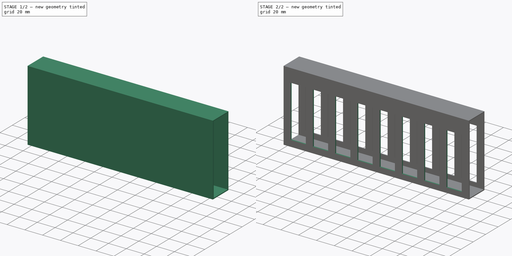
[diagram: build sequence overview — one tinted view per stage of 2, left to right]
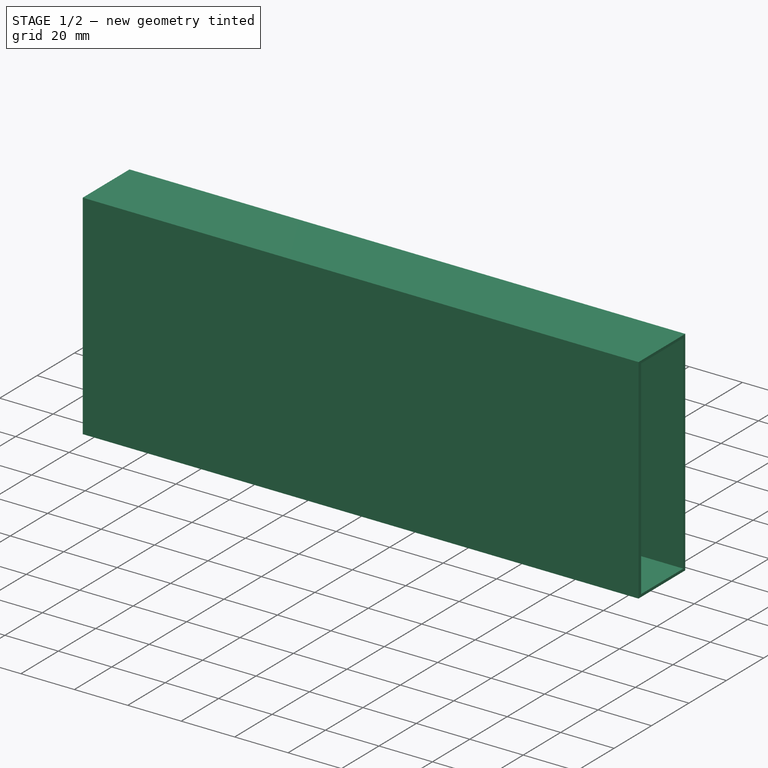
[diagram: stage 1 of 2 — iso view after this stage's code; geometry added in this stage tinted green]
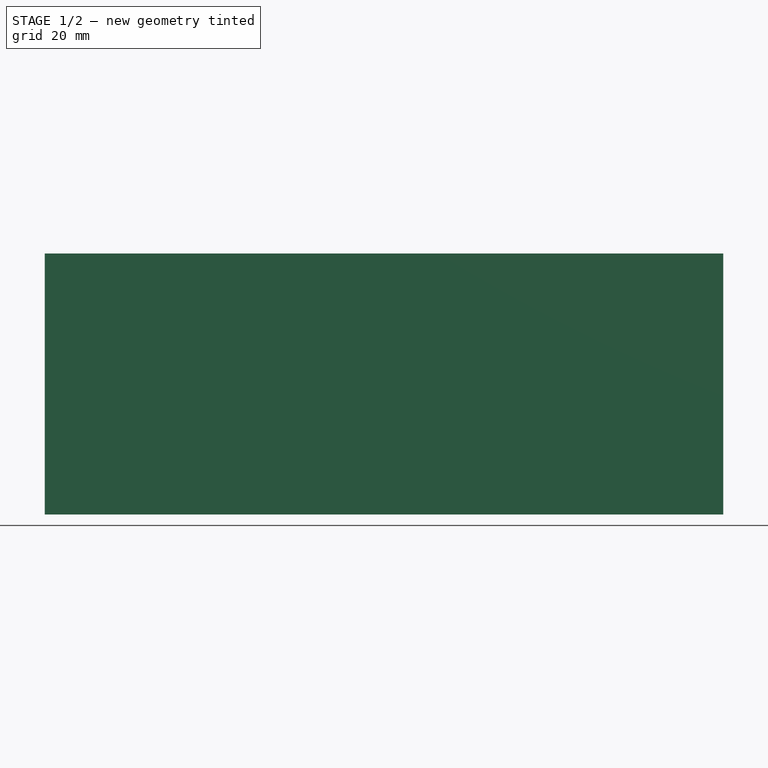
[diagram: stage 1 of 2 — front view after this stage's code; geometry added in this stage tinted green]
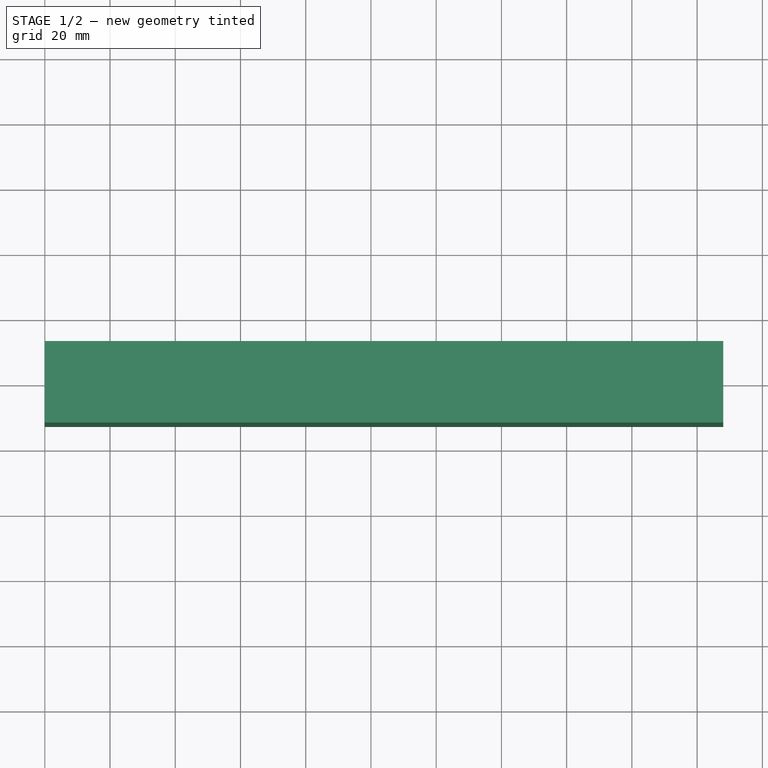
[diagram: stage 1 of 2 — top view after this stage's code; geometry added in this stage tinted green]
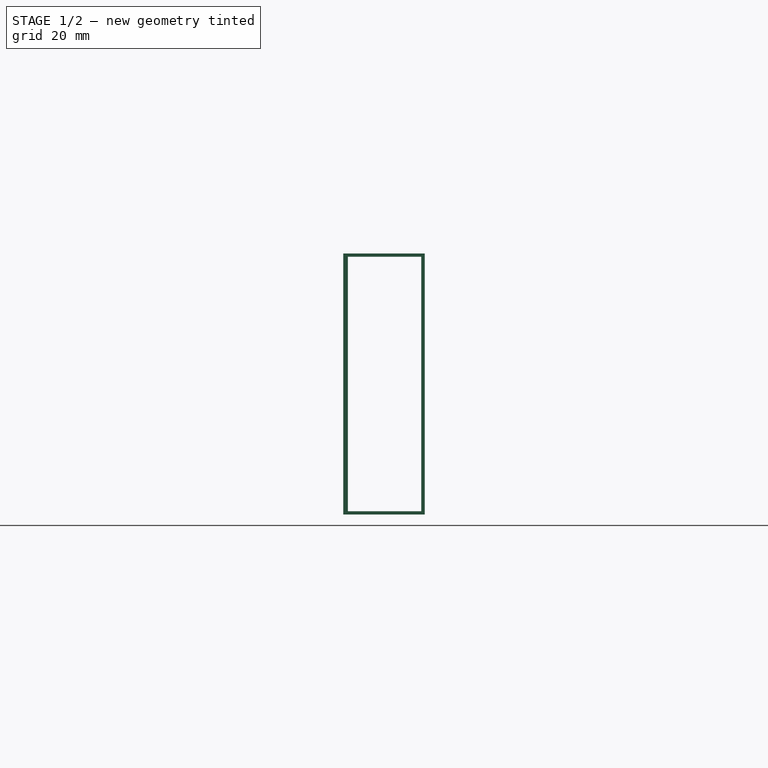
[diagram: stage 1 of 2 — right view after this stage's code; geometry added in this stage tinted green]
FCSTD DOCUMENT  (FreeCAD 0.19R24267 +99 (Git))
Label: ID_28_W20_ダクト
License: All rights reserved
LicenseURL: http://en.wikipedia.org/wiki/All_rights_reserved
objects: Sketcher::SketchObject×3, PartDesign::Pocket×2, PartDesign::Pad×1, PartDesign::Body×1
note: 10 computed .brp shape members not serialized (recipe doc carries the construction recipe); baked Part::Feature solids carry a one-line shape summary decoded from their .brp

FEATURE [Sketcher::SketchObject] Sketch
  FullyConstrained = false
  MapMode = 5
  Placement = pos=(0,0,0) rot=(0.57735,0.57735,0.57735;2.0944rad)
  Support = -> [YZ_Plane]
  sketch-geometry (4):
    g0: LineSegment StartX=-12.6811 StartY=80 StartZ=0 EndX=12.3189 EndY=80 EndZ=0
    g1: LineSegment StartX=12.3189 StartY=80 StartZ=0 EndX=12.3189 EndY=0 EndZ=0
    g2: LineSegment StartX=12.3189 StartY=0 StartZ=0 EndX=-12.6811 EndY=0 EndZ=0
    g3: LineSegment StartX=-12.6811 StartY=0 StartZ=0 EndX=-12.6811 EndY=80 EndZ=0
  constraints (11):
    c: Coincident(g0,g1)
    c: Coincident(g1,g2)
    c: Coincident(g2,g3)
    c: Coincident(g3,g0)
    c: Horizontal(g0)
    c: Horizontal(g2)
    c: Vertical(g1)
    c: Vertical(g3)
    c: DistanceX(g0,g0) = 25
    c: DistanceY(g3,g3) = 80
    c: PointOnObject(g-1,g2)
FEATURE [PartDesign::Pad] Pad
  Direction = (1,1,1)
  Length = 208
  Length2 = 100
  Placement = pos=(0,0,0) rot=(0.57735,0.57735,0.57735;2.0944rad)
  Profile = -> Sketch
  Type = 0
FEATURE [Sketcher::SketchObject] Sketch001
  FullyConstrained = true
  MapMode = 5
  Placement = pos=(-8.8e-15,0,0) rot=(0.57735,0.57735,-0.57735;4.18879rad)
  Support = -> [Pad]
  sketch-geometry (4):
    g0: LineSegment StartX=11.25 StartY=-79 StartZ=0 EndX=-11.25 EndY=-79 EndZ=0
    g1: LineSegment StartX=-11.25 StartY=-79 StartZ=0 EndX=-11.25 EndY=-1 EndZ=0
    g2: LineSegment StartX=-11.25 StartY=-1 StartZ=0 EndX=11.25 EndY=-1 EndZ=0
    g3: LineSegment StartX=11.25 StartY=-1 StartZ=0 EndX=11.25 EndY=-79 EndZ=0
  constraints (12):
    c: Coincident(g0,g1)
    c: Coincident(g1,g2)
    c: Coincident(g2,g3)
    c: Coincident(g3,g0)
    c: Horizontal(g0)
    c: Horizontal(g2)
    c: Vertical(g1)
    c: Vertical(g3)
    c: DistanceX(g0,g0) = 22.5
    c: DistanceY(g1,g1) = 78
    c: DistanceY(g-1,g1) = -1
    c: DistanceX(g1,g-1) = 11.25
FEATURE [PartDesign::Pocket] Pocket
  BaseFeature = -> Pad
  Length = 1000
  Length2 = 100
  Placement = pos=(0,0,0) rot=(0.57735,0.57735,0.57735;2.0944rad)
  Profile = -> Sketch001
  Type = 0
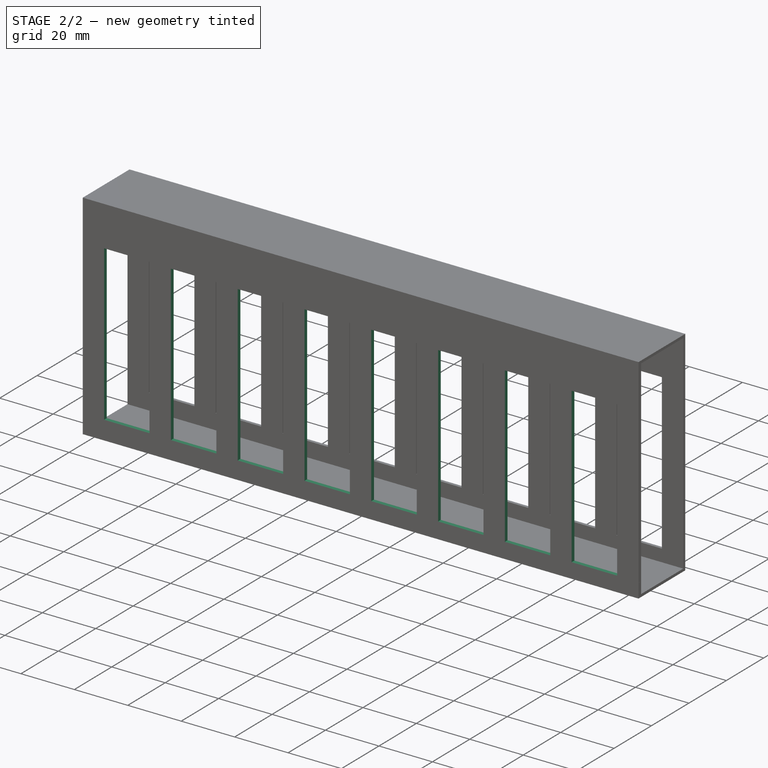
[diagram: stage 2 of 2 — iso view after this stage's code; geometry added in this stage tinted green]
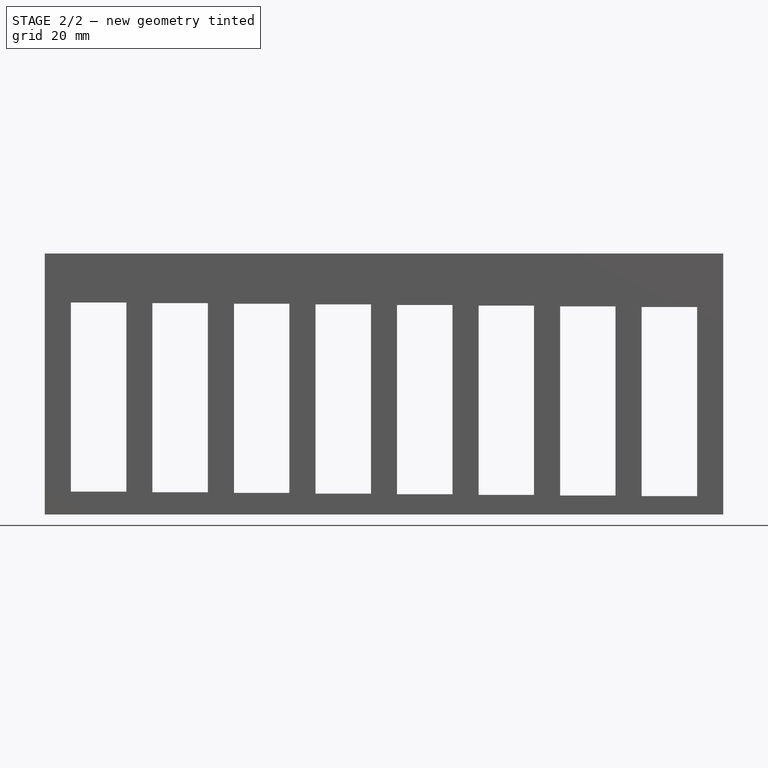
[diagram: stage 2 of 2 — front view after this stage's code; geometry added in this stage tinted green]
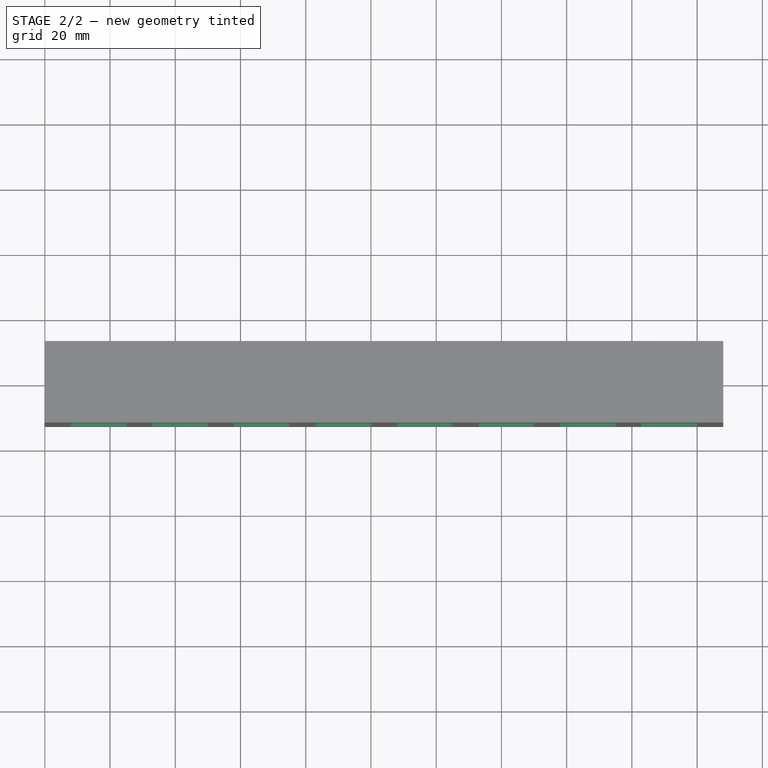
[diagram: stage 2 of 2 — top view after this stage's code; geometry added in this stage tinted green]
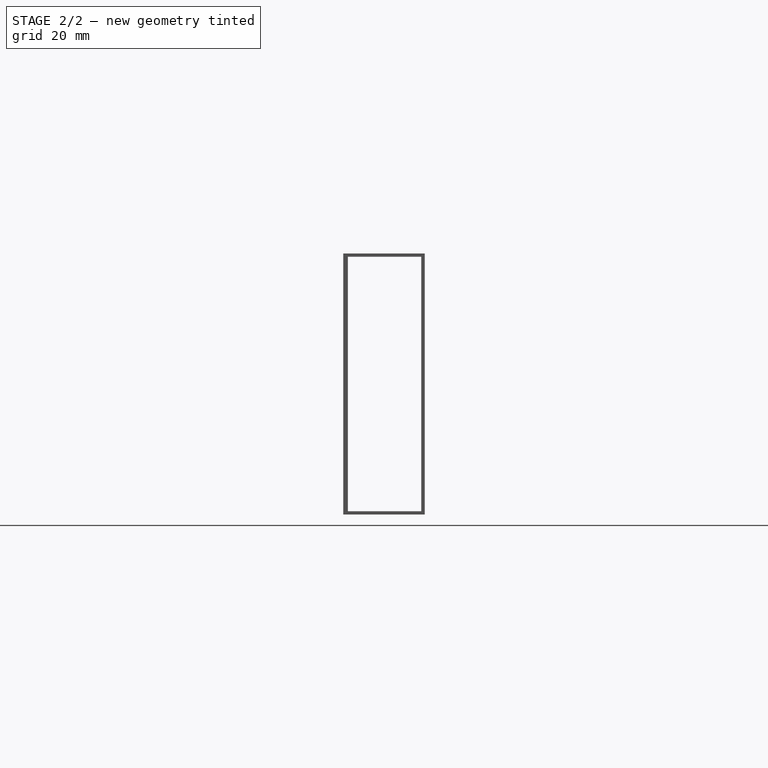
[diagram: stage 2 of 2 — right view after this stage's code; geometry added in this stage tinted green]
FEATURE [Sketcher::SketchObject] Sketch002
  FullyConstrained = true
  MapMode = 5
  Placement = pos=(-5.6e-15,-12.6811,8.4e-15) rot=(0.57735,0.57735,-0.57735;2.0944rad)
  Support = -> [Pocket]
  sketch-geometry (49):
    g0: LineSegment StartX=-65 StartY=25 StartZ=0 EndX=-7 EndY=25 EndZ=0
    g1: LineSegment StartX=-7 StartY=25 StartZ=0 EndX=-7 EndY=8 EndZ=0
    g2: LineSegment StartX=-7 StartY=8 StartZ=0 EndX=-65 EndY=8 EndZ=0
    g3: LineSegment StartX=-65 StartY=8 StartZ=0 EndX=-65 EndY=25 EndZ=0
    g4: LineSegment StartX=-64.8028 StartY=49.9992 StartZ=0 EndX=-6.8028 EndY=49.9992 EndZ=0
    g5: LineSegment StartX=-6.8028 StartY=49.9992 StartZ=0 EndX=-6.8028 EndY=32.9992 EndZ=0
    g6: LineSegment StartX=-6.8028 StartY=32.9992 StartZ=0 EndX=-64.8028 EndY=32.9992 EndZ=0
    g7: LineSegment StartX=-64.8028 StartY=32.9992 StartZ=0 EndX=-64.8028 EndY=49.9992 EndZ=0
    g8: LineSegment StartX=-65 StartY=25 StartZ=0 EndX=-64.8028 EndY=49.9992 EndZ=0
    g9: LineSegment StartX=-64.6056 StartY=74.9984 StartZ=0 EndX=-6.60559 EndY=74.9984 EndZ=0
    g10: LineSegment StartX=-6.60559 StartY=74.9984 StartZ=0 EndX=-6.60559 EndY=57.9984 EndZ=0
    g11: LineSegment StartX=-6.60559 StartY=57.9984 StartZ=0 EndX=-64.6056 EndY=57.9984 EndZ=0
    g12: LineSegment StartX=-64.6056 StartY=57.9984 StartZ=0 EndX=-64.6056 EndY=74.9984 EndZ=0
    g13: LineSegment StartX=-64.8028 StartY=49.9992 StartZ=0 EndX=-64.6056 EndY=74.9984 EndZ=0
    g14: LineSegment StartX=-64.4084 StartY=99.9977 StartZ=0 EndX=-6.40839 EndY=99.9977 EndZ=0
    g15: LineSegment StartX=-6.40839 StartY=99.9977 StartZ=0 EndX=-6.40839 EndY=82.9977 EndZ=0
    g16: LineSegment StartX=-6.40839 StartY=82.9977 StartZ=0 EndX=-64.4084 EndY=82.9977 EndZ=0
    g17: LineSegment StartX=-64.4084 StartY=82.9977 StartZ=0 EndX=-64.4084 EndY=99.9977 EndZ=0
    g18: LineSegment StartX=-64.6056 StartY=74.9984 StartZ=0 EndX=-64.4084 EndY=99.9977 EndZ=0
    g19: LineSegment StartX=-64.2112 StartY=124.997 StartZ=0 EndX=-6.21119 EndY=124.997 EndZ=0
    g20: LineSegment StartX=-6.21119 StartY=124.997 StartZ=0 EndX=-6.21119 EndY=107.997 EndZ=0
    g21: LineSegment StartX=-6.21119 StartY=107.997 StartZ=0 EndX=-64.2112 EndY=107.997 EndZ=0
    g22: LineSegment StartX=-64.2112 StartY=107.997 StartZ=0 EndX=-64.2112 EndY=124.997 EndZ=0
    g23: LineSegment StartX=-64.4084 StartY=99.9977 StartZ=0 EndX=-64.2112 EndY=124.997 EndZ=0
    g24: LineSegment StartX=-64.014 StartY=149.996 StartZ=0 EndX=-6.01398 EndY=149.996 EndZ=0
    g25: LineSegment StartX=-6.01398 StartY=149.996 StartZ=0 EndX=-6.01398 EndY=132.996 EndZ=0
    g26: LineSegment StartX=-6.01398 StartY=132.996 StartZ=0 EndX=-64.014 EndY=132.996 EndZ=0
    g27: LineSegment StartX=-64.014 StartY=132.996 StartZ=0 EndX=-64.014 EndY=149.996 EndZ=0
    g28: LineSegment StartX=-64.2112 StartY=124.997 StartZ=0 EndX=-64.014 EndY=149.996 EndZ=0
    g29: LineSegment StartX=-63.8168 StartY=174.995 StartZ=0 EndX=-5.81678 EndY=174.995 EndZ=0
    g30: LineSegment StartX=-5.81678 StartY=174.995 StartZ=0 EndX=-5.81678 EndY=157.995 EndZ=0
    g31: LineSegment StartX=-5.81678 StartY=157.995 StartZ=0 EndX=-63.8168 EndY=157.995 EndZ=0
    g32: LineSegment StartX=-63.8168 StartY=157.995 StartZ=0 EndX=-63.8168 EndY=174.995 EndZ=0
    g33: LineSegment StartX=-64.014 StartY=149.996 StartZ=0 EndX=-63.8168 EndY=174.995 EndZ=0
    g34: LineSegment StartX=-63.6196 StartY=199.995 StartZ=0 EndX=-5.61958 EndY=199.995 EndZ=0
    g35: LineSegment StartX=-5.61958 StartY=199.995 StartZ=0 EndX=-5.61958 EndY=182.995 EndZ=0
    g36: LineSegment StartX=-5.61958 StartY=182.995 StartZ=0 EndX=-63.6196 EndY=182.995 EndZ=0
    g37: LineSegment StartX=-63.6196 StartY=182.995 StartZ=0 EndX=-63.6196 EndY=199.995 EndZ=0
    g38: LineSegment StartX=-63.8168 StartY=174.995 StartZ=0 EndX=-63.6196 EndY=199.995 EndZ=0
    g39: LineSegment StartX=-63.4224 StartY=224.994 StartZ=0 EndX=-5.42238 EndY=224.994 EndZ=0
    g40: LineSegment StartX=-5.42238 StartY=224.994 StartZ=0 EndX=-5.42238 EndY=207.994 EndZ=0
    g41: LineSegment StartX=-5.42238 StartY=207.994 StartZ=0 EndX=-63.4224 EndY=207.994 EndZ=0
    g42: LineSegment StartX=-63.4224 StartY=207.994 StartZ=0 EndX=-63.4224 EndY=224.994 EndZ=0
    g43: LineSegment StartX=-63.6196 StartY=199.995 StartZ=0 EndX=-63.4224 EndY=224.994 EndZ=0
    g44: LineSegment StartX=-63.2252 StartY=249.993 StartZ=0 EndX=-5.22517 EndY=249.993 EndZ=0
    g45: LineSegment StartX=-5.22517 StartY=249.993 StartZ=0 EndX=-5.22517 EndY=232.993 EndZ=0
    g46: LineSegment StartX=-5.22517 StartY=232.993 StartZ=0 EndX=-63.2252 EndY=232.993 EndZ=0
    g47: LineSegment StartX=-63.2252 StartY=232.993 StartZ=0 EndX=-63.2252 EndY=249.993 EndZ=0
    g48: LineSegment StartX=-63.4224 StartY=224.994 StartZ=0 EndX=-63.2252 EndY=249.993 EndZ=0
  constraints (138):
    c: Coincident(g0,g1)
    c: Coincident(g1,g2)
    c: Coincident(g2,g3)
    c: Coincident(g3,g0)
    c: Horizontal(g0)
    c: Horizontal(g2)
    c: Vertical(g1)
    c: Vertical(g3)
    c: DistanceX(g0,g0) = 58
    c: DistanceY(g3,g3) = 17
    c: DistanceX(g1,g-1) = 7
    c: Coincident(g4,g5)
    c: Coincident(g5,g6)
    c: Coincident(g6,g7)
    c: Coincident(g7,g4)
    c: Horizontal(g4)
    c: Horizontal(g6)
    c: Vertical(g5)
    c: Vertical(g7)
    c: DistanceX(g4,g4) = 58
    c: DistanceY(g7,g7) = 17
    c: Coincident(g0,g8)
    c: Coincident(g4,g8)
    c: Distance(g8) = 25
    c: Angle(g8) = 1.56291
    c: Coincident(g9,g10)
    c: Coincident(g10,g11)
    c: Coincident(g11,g12)
    c: Coincident(g12,g9)
    c: Horizontal(g9)
    c: Horizontal(g11)
    c: Vertical(g10)
    c: Vertical(g12)
    c: DistanceX(g9,g9) = 58
    c: DistanceY(g12,g12) = 17
    c: Coincident(g4,g13)
    c: Coincident(g9,g13)
    c: Equal(g8,g13)
    c: Parallel(g13,g8)
    c: Coincident(g14,g15)
    c: Coincident(g15,g16)
    c: Coincident(g16,g17)
    c: Coincident(g17,g14)
    c: Horizontal(g14)
    c: Horizontal(g16)
    c: Vertical(g15)
    c: Vertical(g17)
    c: DistanceX(g14,g14) = 58
    c: DistanceY(g17,g17) = 17
    c: Coincident(g9,g18)
    c: Coincident(g14,g18)
    c: Equal(g8,g18)
    c: Parallel(g18,g8)
    c: Coincident(g19,g20)
    c: Coincident(g20,g21)
    c: Coincident(g21,g22)
    c: Coincident(g22,g19)
    c: Horizontal(g19)
    c: Horizontal(g21)
    c: Vertical(g20)
    c: Vertical(g22)
    c: DistanceX(g19,g19) = 58
    c: DistanceY(g22,g22) = 17
    c: Coincident(g14,g23)
    c: Coincident(g19,g23)
    c: Equal(g8,g23)
    c: Parallel(g23,g8)
    c: Coincident(g24,g25)
    c: Coincident(g25,g26)
    c: Coincident(g26,g27)
    c: Coincident(g27,g24)
    c: Horizontal(g24)
    c: Horizontal(g26)
    c: Vertical(g25)
    c: Vertical(g27)
    c: DistanceX(g24,g24) = 58
    c: DistanceY(g27,g27) = 17
    c: Coincident(g19,g28)
    c: Coincident(g24,g28)
    c: Equal(g8,g28)
    c: Parallel(g28,g8)
    c: Coincident(g29,g30)
    c: Coincident(g30,g31)
    c: Coincident(g31,g32)
    c: Coincident(g32,g29)
    c: Horizontal(g29)
    c: Horizontal(g31)
    c: Vertical(g30)
    c: Vertical(g32)
    c: DistanceX(g29,g29) = 58
    c: DistanceY(g32,g32) = 17
    c: Coincident(g24,g33)
    c: Coincident(g29,g33)
    c: Equal(g8,g33)
    c: Parallel(g33,g8)
    c: Coincident(g34,g35)
    c: Coincident(g35,g36)
    c: Coincident(g36,g37)
    c: Coincident(g37,g34)
    c: Horizontal(g34)
    c: Horizontal(g36)
    c: Vertical(g35)
    c: Vertical(g37)
    c: DistanceX(g34,g34) = 58
    c: DistanceY(g37,g37) = 17
    c: Coincident(g29,g38)
    c: Coincident(g34,g38)
    c: Equal(g8,g38)
    c: Parallel(g38,g8)
    c: Coincident(g39,g40)
    c: Coincident(g40,g41)
    c: Coincident(g41,g42)
    c: Coincident(g42,g39)
    c: Horizontal(g39)
    c: Horizontal(g41)
    c: Vertical(g40)
    c: Vertical(g42)
    c: DistanceX(g39,g39) = 58
    c: DistanceY(g42,g42) = 17
    c: Coincident(g34,g43)
    c: Coincident(g39,g43)
    c: Equal(g8,g43)
    c: Parallel(g43,g8)
    c: Coincident(g44,g45)
    c: Coincident(g45,g46)
    c: Coincident(g46,g47)
    c: Coincident(g47,g44)
    c: Horizontal(g44)
    c: Horizontal(g46)
    c: Vertical(g45)
    c: Vertical(g47)
    c: DistanceX(g44,g44) = 58
    c: DistanceY(g47,g47) = 17
    c: Coincident(g39,g48)
    c: Coincident(g44,g48)
    c: Equal(g8,g48)
    c: Parallel(g48,g8)
    c: DistanceY(g-1,g1) = 8
FEATURE [PartDesign::Pocket] Pocket001
  BaseFeature = -> Pocket
  Length = 26
  Length2 = 100
  Placement = pos=(0,0,0) rot=(0.57735,0.57735,0.57735;2.0944rad)
  Profile = -> Sketch002
  Type = 0
FEATURE [PartDesign::Body] Body
  Group = -> [Sketch,Pad,Sketch001,Pocket,Sketch002,Pocket001]
  Origin = -> Origin
  Tip = -> Pocket001
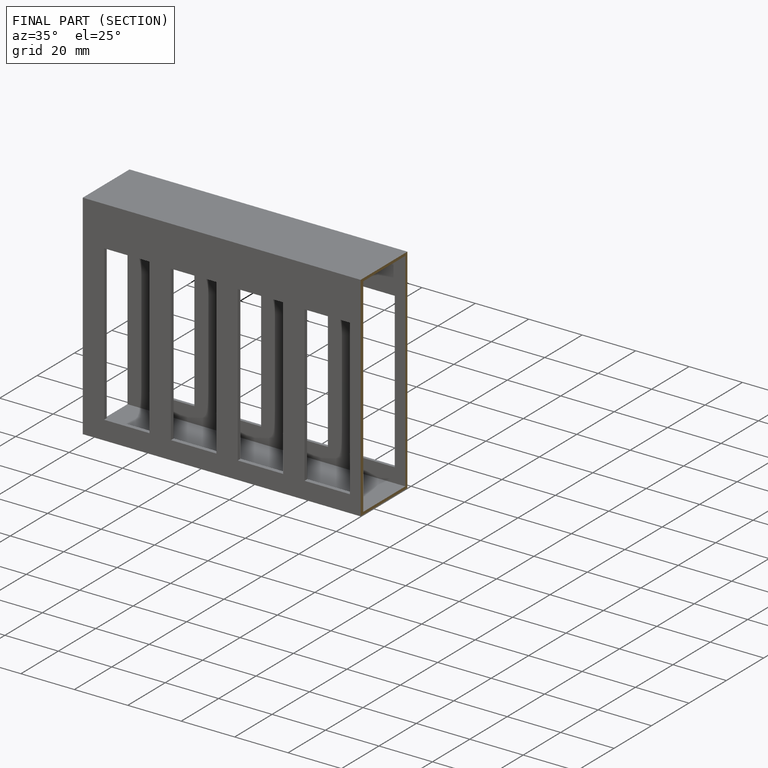
[diagram: finished part — half-section view (interior)]
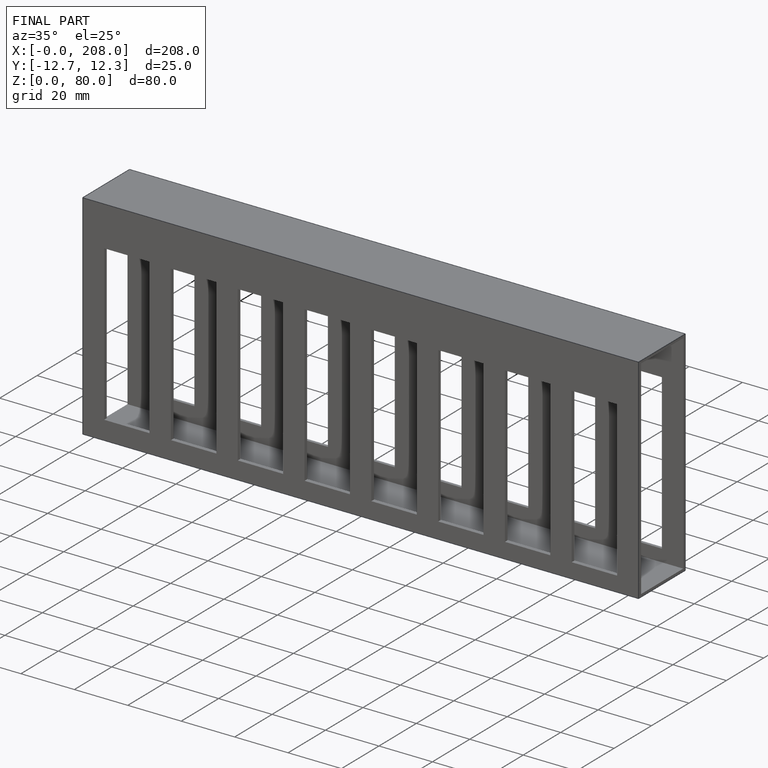
[diagram: finished part — iso view with bounding-box wireframe]
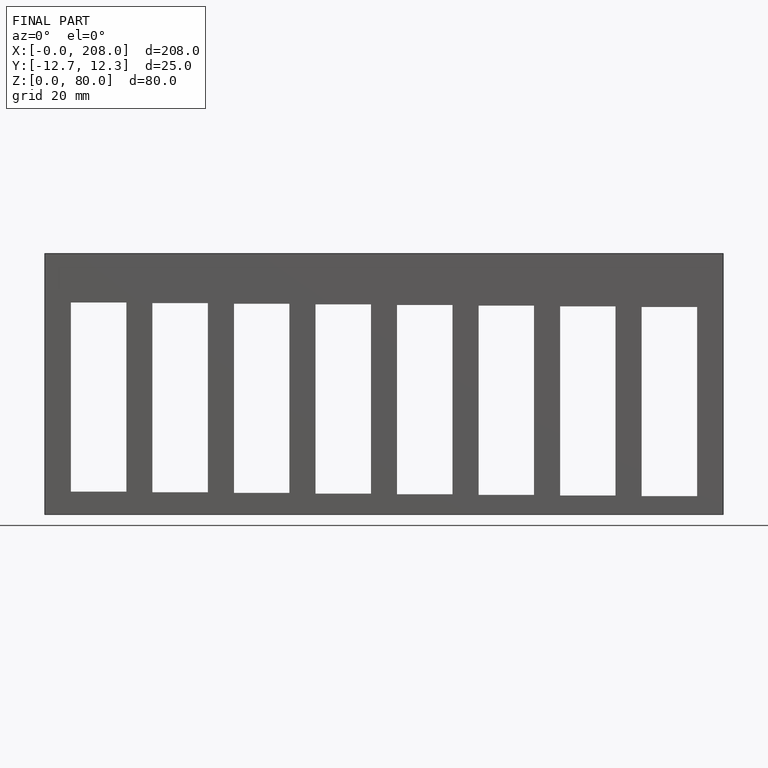
[diagram: finished part — front view with bounding-box wireframe]
